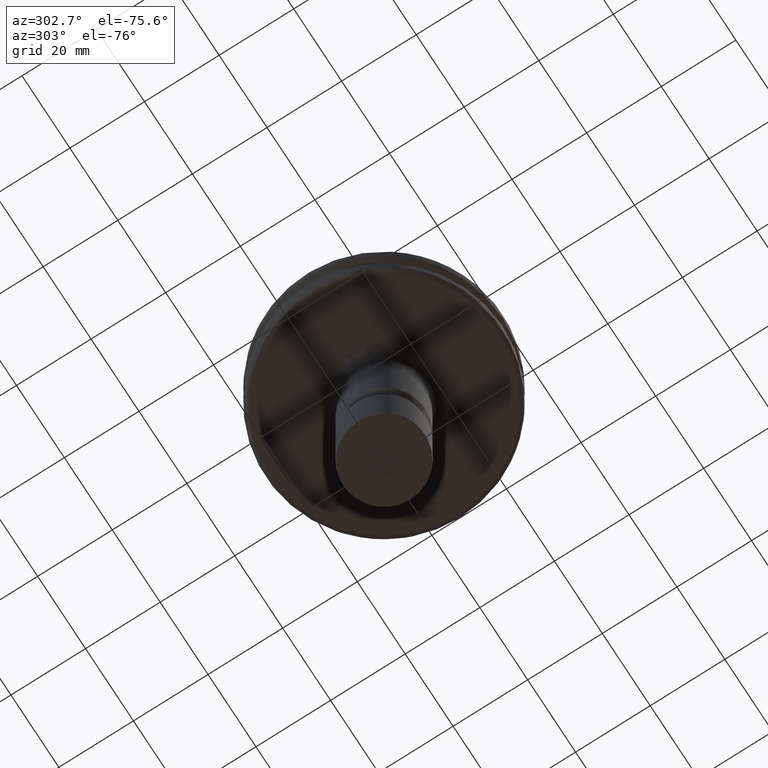
[diagram: clean part render]
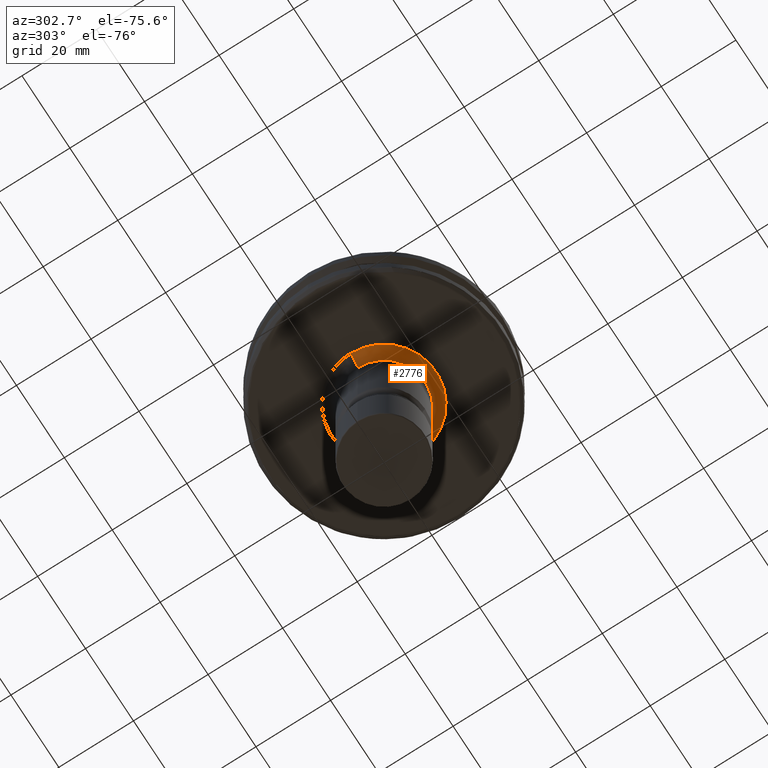
[diagram: same view with one face highlighted and labeled with its STEP entity id]
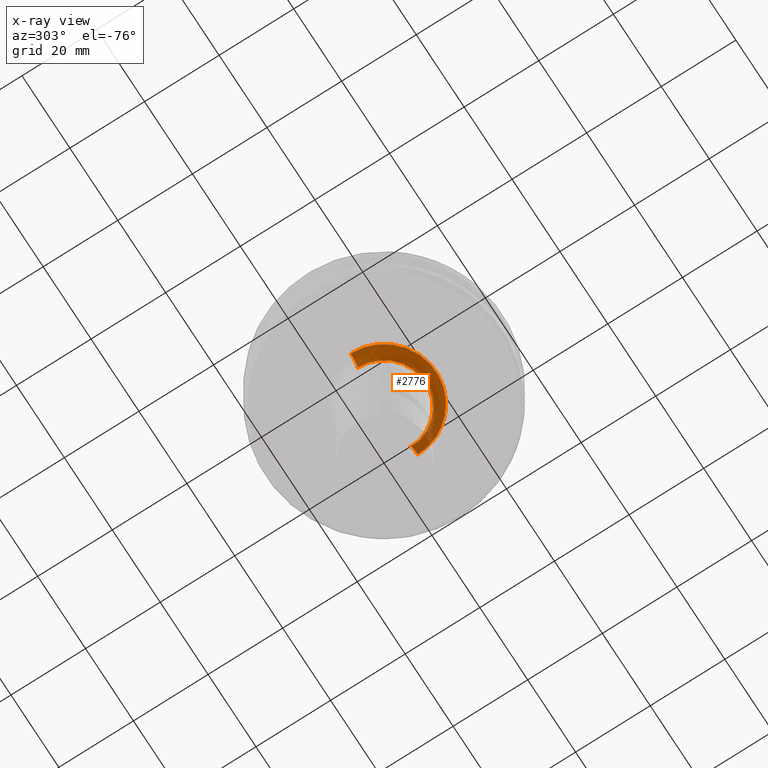
[diagram: x-ray of the same camera — body ghosted, the highlighted face saturated]
A machine part, auxiliary view. The second image highlights one B-rep face of the part: STEP entity #2776.
The next image is the same camera in x-ray: the body ghosted, the highlighted face saturated — about 12% of this face is hidden behind the body in this view.
In plain terms, the highlighted face is a freeform B-spline surface patch.
Its self-contained STEP definition (entity closure, byte-faithful):
#8 = CARTESIAN_POINT ( 'NONE',  ( 9.670185699738393500, -10.12905203563918700, -19.09999999999999800 ) ) ;
#27 = CARTESIAN_POINT ( 'NONE',  ( 2.030165421139752600, -13.85504947039885300, -19.10000000000000900 ) ) ;
#57 = CARTESIAN_POINT ( 'NONE',  ( -6.825787670833677500, -12.22346911042932200, -19.09999999999999800 ) ) ;
#60 = CARTESIAN_POINT ( 'NONE',  ( 12.99569472290052000, -5.233503724584436700, -19.09999999999999800 ) ) ;
#69 = CARTESIAN_POINT ( 'NONE',  ( -3.586314924045678400, -13.53362853226985300, -19.10000000000000100 ) ) ;
#83 = CARTESIAN_POINT ( 'NONE',  ( -12.38960221635758600, -6.534185748997289900, -19.09999999999999800 ) ) ;
#96 = CARTESIAN_POINT ( 'NONE',  ( -13.44615304805582700, -3.898854884805516500, -19.10000000000000100 ) ) ;
#105 = CARTESIAN_POINT ( 'NONE',  ( 8.857159757292198100, -10.84346154779650500, -19.09999999999999800 ) ) ;
#107 = CARTESIAN_POINT ( 'NONE',  ( 11.01498750400000000, -22.02997500800000500, -22.39950024999999900 ) ) ;
#133 = CARTESIAN_POINT ( 'NONE',  ( 4.604306026414626300, -13.22256113552754700, -19.09999999999999800 ) ) ;
#143 = CARTESIAN_POINT ( 'NONE',  ( -6.707400549822712500, -12.28882747609662300, -19.10000000000000900 ) ) ;
#153 = CARTESIAN_POINT ( 'NONE',  ( -6.342564730461603500, -12.48397714306705300, -19.10000000000000500 ) ) ;
#197 = CARTESIAN_POINT ( 'NONE',  ( -13.82938912185350200, -2.207324433498945900, -19.10000000000000100 ) ) ;
#205 = CARTESIAN_POINT ( 'NONE',  ( -11.01498750400000000, -22.02997500800000500, -22.39950024999999900 ) ) ;
#206 = CARTESIAN_POINT ( 'NONE',  ( -13.90998340567376300, -1.588377989081420000, -19.10000000000000100 ) ) ;
#209 = CARTESIAN_POINT ( 'NONE',  ( 3.722201693382291700, -13.49913474462273500, -19.10000000000000500 ) ) ;
#220 = CARTESIAN_POINT ( 'NONE',  ( 10.81033873200000200, -21.62067746400000700, -20.35983870400000500 ) ) ;
#221 = CARTESIAN_POINT ( 'NONE',  ( 13.87481563281596700, -1.868040598296404600, -19.10000000000000500 ) ) ;
#227 = ORIENTED_EDGE ( 'NONE', *, *, #3359, .T. ) ;
#236 = CARTESIAN_POINT ( 'NONE',  ( 13.85492846194623700, -2.011050052642201300, -19.10000000000000100 ) ) ;
#272 = CARTESIAN_POINT ( 'NONE',  ( 13.43691934145425100, -3.930560815935495900, -19.10000000000001200 ) ) ;
#274 = CARTESIAN_POINT ( 'NONE',  ( 12.54140199261577700, -6.222103028750720600, -19.10000000000000500 ) ) ;
#289 = EDGE_CURVE ( 'NONE', #3063, #930, #443, .T. ) ;
#323 = ORIENTED_EDGE ( 'NONE', *, *, #289, .F. ) ;
#336 = CIRCLE ( 'NONE', #2621, 11.00000000000000000 ) ;
#341 = CARTESIAN_POINT ( 'NONE',  ( -1.164762836666204200, -13.96366059549640700, -19.10000000000000500 ) ) ;
#359 = CARTESIAN_POINT ( 'NONE',  ( -12.24264068676927600, 0.0000000000000000000, -19.10000000091065100 ) ) ;
#378 = CARTESIAN_POINT ( 'NONE',  ( 13.78289792497374400, -2.467124180636911700, -19.09999999999999800 ) ) ;
#402 = CARTESIAN_POINT ( 'NONE',  ( 2.953587426001917000, -13.68624150545927500, -19.09999999999999800 ) ) ;
#405 = CARTESIAN_POINT ( 'NONE',  ( 10.13205364928209200, -9.661692692664953300, -19.10000000000000500 ) ) ;
#431 = CARTESIAN_POINT ( 'NONE',  ( -13.89360941968722700, -1.723427841727858100, -19.10000000000000500 ) ) ;
#443 = B_SPLINE_CURVE_WITH_KNOTS ( 'NONE', 3,
 ( #3166, #2090, #2102, #3142, #206, #431, #1032, #3382, #2827, #1009, #197, #3192, #2377, #1898, #3227, #603, #2462, #96, #573, #3316, #2834, #1540, #3143, #1403, #1584, #2095, #1043, #594, #83, #2033, #2765, #3281, #1013, #1042, #1245, #1172, #1553, #1552, #3493, #1122, #2592, #1297, #2011, #1536, #2922, #1635, #2486, #1287, #781, #1619, #2435, #3353, #1397, #1085, #2180, #2754, #2713, #3295, #988, #3440, #57, #143, #1116, #153, #2939, #570, #1109, #2670, #3331, #2572, #1625, #1493, #1467, #69, #870, #820, #1076, #544, #341, #1140, #1311, #2101, #2667, #2784, #3090, #27, #1819, #402, #1745, #614, #2392, #209, #2646, #133, #1910, #2893, #2933, #2126, #1841, #1611, #1477, #2747, #2237, #1205, #2644, #1384, #3050, #3329, #2348, #2389, #1267, #1971, #105, #1443, #990, #1863, #2580, #2616, #8, #2708, #405, #2408, #1471, #2145, #1161, #3461, #676, #2259, #1278, #661, #1082, #2508, #2092, #2030, #2335, #1872, #274, #2604, #3073, #1808, #3464, #60, #905, #1646, #1352, #3291, #1107, #2601, #272, #1830, #599, #378, #2457, #236, #1244, #3380, #482, #221, #3407, #995, #2141 ),
 .UNSPECIFIED., .F., .F.,
 ( 4, 1, 1, 1, 1, 1, 2, 2, 1, 1, 1, 1, 1, 2, 2, 1, 1, 1, 1, 1, 2, 2, 1, 1, 1, 1, 2, 2, 1, 1, 1, 2, 2, 1, 1, 1, 2, 2, 1, 1, 1, 2, 2, 1, 1, 2, 2, 1, 1, 2, 2, 1, 2, 2, 2, 2, 2, 1, 2, 2, 1, 1, 2, 2, 1, 1, 2, 2, 1, 1, 2, 2, 1, 1, 1, 2, 2, 1, 1, 1, 2, 2, 1, 1, 1, 2, 2, 1, 1, 1, 2, 2, 1, 1, 1, 1, 1, 2, 2, 1, 1, 1, 1, 1, 2, 2, 1, 1, 1, 1, 1, 2, 2, 4 ),
 ( 0.0000000000000000000, 0.03124999999999803600, 0.04687499999999704400, 0.05468749999999654400, 0.05859374999999628800, 0.06054687499999617700, 0.06152343749999612800, 0.06249999999999608600, 0.09374999999999446300, 0.1093749999999936600, 0.1171874999999932100, 0.1210937499999930300, 0.1230468749999929100, 0.1240234374999928300, 0.1249999999999927600, 0.1562499999999906500, 0.1718749999999896200, 0.1796874999999890900, 0.1835937499999887900, 0.1855468749999886200, 0.1865234374999885600, 0.1874999999999884800, 0.2187499999999882000, 0.2343749999999880100, 0.2421874999999879500, 0.2460937499999878700, 0.2480468749999879000, 0.2499999999999879500, 0.2656249999999890600, 0.2734374999999896200, 0.2773437499999899000, 0.2792968749999900600, 0.2812499999999902300, 0.2968749999999913400, 0.3046874999999918400, 0.3085937499999920600, 0.3105468749999920600, 0.3124999999999921200, 0.3281249999999923900, 0.3359374999999925100, 0.3398437499999925600, 0.3417968749999925600, 0.3437499999999925600, 0.3593749999999923900, 0.3671874999999922800, 0.3710937499999922800, 0.3749999999999922300, 0.3906249999999922800, 0.3984374999999922800, 0.4023437499999922800, 0.4062499999999922300, 0.4218749999999922300, 0.4296874999999922300, 0.4374999999999921700, 0.4531249999999921200, 0.4687499999999920600, 0.4999999999999920100, 0.5156249999999920100, 0.5234374999999920100, 0.5312499999999919000, 0.5468749999999917800, 0.5546874999999917800, 0.5585937499999917800, 0.5624999999999917800, 0.5781249999999917800, 0.5859374999999917800, 0.5898437499999917800, 0.5937499999999917800, 0.6093749999999919000, 0.6171874999999920100, 0.6210937499999919000, 0.6249999999999919000, 0.6406249999999919000, 0.6484374999999920100, 0.6523437499999920100, 0.6542968749999920100, 0.6562499999999920100, 0.6718749999999921200, 0.6796874999999921200, 0.6835937499999922300, 0.6855468749999923400, 0.6874999999999924500, 0.7031249999999924500, 0.7109374999999924500, 0.7148437499999923400, 0.7167968749999924500, 0.7187499999999925600, 0.7343749999999928900, 0.7421874999999932300, 0.7460937499999934500, 0.7480468749999935600, 0.7499999999999935600, 0.7812499999999956700, 0.7968749999999965600, 0.8046874999999970000, 0.8085937499999971100, 0.8105468749999973400, 0.8115234374999974500, 0.8124999999999974500, 0.8437499999999983300, 0.8593749999999987800, 0.8671874999999988900, 0.8710937499999990000, 0.8730468749999991100, 0.8740234374999991100, 0.8749999999999992200, 0.9062499999999993300, 0.9218749999999994400, 0.9296874999999995600, 0.9335937499999996700, 0.9355468749999995600, 0.9365234374999996700, 0.9374999999999996700, 1.000000000000000000 ),
 .UNSPECIFIED. ) ;
#479 = CARTESIAN_POINT ( 'NONE',  ( -11.01498750400000000, 0.0000000000000000000, -22.39950024999999900 ) ) ;
#482 = CARTESIAN_POINT ( 'NONE',  ( 13.87316931708519800, -1.880232539237060000, -19.10000000000000100 ) ) ;
#488 = CARTESIAN_POINT ( 'NONE',  ( -14.29950025000000100, -28.59900049999999500, -19.11498750400000500 ) ) ;
#544 = CARTESIAN_POINT ( 'NONE',  ( -2.032404573620525800, -13.85474557572991800, -19.10000000000000500 ) ) ;
#570 = CARTESIAN_POINT ( 'NONE',  ( -5.523321351448320400, -12.86573239425141900, -19.10000000000000100 ) ) ;
#573 = CARTESIAN_POINT ( 'NONE',  ( -13.44347325977919100, -3.908090055383259800, -19.10000000000000500 ) ) ;
#594 = CARTESIAN_POINT ( 'NONE',  ( -12.59035301931482600, -6.122351638554295800, -19.10000000000000500 ) ) ;
#599 = CARTESIAN_POINT ( 'NONE',  ( 13.66703007546562500, -3.070895171057114800, -19.09999999999999400 ) ) ;
#603 = CARTESIAN_POINT ( 'NONE',  ( -13.46140253849050500, -3.845964829889311000, -19.10000000000000100 ) ) ;
#614 = CARTESIAN_POINT ( 'NONE',  ( 3.305715666981399200, -13.60431573757647800, -19.10000000000000100 ) ) ;
#661 = CARTESIAN_POINT ( 'NONE',  ( 11.16400248908471800, -8.447833707622104200, -19.10000000000000900 ) ) ;
#663 = CARTESIAN_POINT ( 'NONE',  ( -10.81033873200000000, 0.0000000000000000000, -20.35983870400000500 ) ) ;
#676 = CARTESIAN_POINT ( 'NONE',  ( 10.94445488327781600, -8.731782042551010600, -19.10000000000000900 ) ) ;
#781 = CARTESIAN_POINT ( 'NONE',  ( -9.252630499693856000, -10.50665307429635900, -19.10000000000001200 ) ) ;
#820 = CARTESIAN_POINT ( 'NONE',  ( -2.883757012376557700, -13.70285579274853500, -19.10000000000000900 ) ) ;
#822 = CARTESIAN_POINT ( 'NONE',  ( 10.99999999996942700, -4.938649563580315600E-010, -22.10000000000000100 ) ) ;
#870 = CARTESIAN_POINT ( 'NONE',  ( -3.165831689325285100, -13.64043523922912700, -19.10000000000000900 ) ) ;
#905 = CARTESIAN_POINT ( 'NONE',  ( 13.23156504931381900, -4.582131538693362300, -19.10000000000000100 ) ) ;
#930 = VERTEX_POINT ( 'NONE', #3204 ) ;
#940 =( BOUNDED_CURVE ( )  B_SPLINE_CURVE ( 3, ( #822, #3205, #1120, #2164 ),
 .UNSPECIFIED., .F., .F. ) 
 B_SPLINE_CURVE_WITH_KNOTS ( ( 4, 4 ),
 ( 0.06314145671542857600, 0.9368585429999990400 ),
 .UNSPECIFIED. ) 
 CURVE ( )  GEOMETRIC_REPRESENTATION_ITEM ( )  RATIONAL_B_SPLINE_CURVE ( ( 0.9565783023485002800, 0.7697947703959744400, 0.7697947703351385500, 0.9565783021659924900 ) ) 
 REPRESENTATION_ITEM ( '' )  );
#951 = ORIENTED_EDGE ( 'NONE', *, *, #1843, .T. ) ;
#988 = CARTESIAN_POINT ( 'NONE',  ( -7.409682543835443400, -11.88381572842554900, -19.10000000000000100 ) ) ;
#990 = CARTESIAN_POINT ( 'NONE',  ( 9.106717894118128600, -10.63337622371102100, -19.10000000000000100 ) ) ;
#995 = CARTESIAN_POINT ( 'NONE',  ( 13.99999999858502500, -0.6223928478897156100, -19.10000000000000100 ) ) ;
#1009 = CARTESIAN_POINT ( 'NONE',  ( -13.87756610177013700, -1.847503412153400200, -19.10000000000000500 ) ) ;
#1013 = CARTESIAN_POINT ( 'NONE',  ( -11.31572006806703900, -8.243783611839973000, -19.10000000000000100 ) ) ;
#1020 = ORIENTED_EDGE ( 'NONE', *, *, #1727, .T. ) ;
#1032 = CARTESIAN_POINT ( 'NONE',  ( -13.88499896153912900, -1.790926287460798700, -19.09999999999999800 ) ) ;
#1042 = CARTESIAN_POINT ( 'NONE',  ( -11.26633694897633800, -8.310861380018137000, -19.10000000000000500 ) ) ;
#1043 = CARTESIAN_POINT ( 'NONE',  ( -12.59513548492049000, -6.112503177034723100, -19.10000000000000100 ) ) ;
#1076 = CARTESIAN_POINT ( 'NONE',  ( -2.316102617542180800, -13.81012906421380900, -19.10000000000001600 ) ) ;
#1082 = CARTESIAN_POINT ( 'NONE',  ( 11.18333890234614400, -8.422213075604137300, -19.09999999999999800 ) ) ;
#1085 = CARTESIAN_POINT ( 'NONE',  ( -8.158444783580272000, -11.37748629482766700, -19.09999999999999800 ) ) ;
#1107 = CARTESIAN_POINT ( 'NONE',  ( 13.42601507327002300, -3.967649351652723600, -19.10000000000000900 ) ) ;
#1109 = CARTESIAN_POINT ( 'NONE',  ( -5.330432813008728800, -12.94570773050853100, -19.10000000000000100 ) ) ;
#1116 = CARTESIAN_POINT ( 'NONE',  ( -6.649652934199322900, -12.32018218333323000, -19.10000000000000900 ) ) ;
#1120 = CARTESIAN_POINT ( 'NONE',  ( 12.24264068605801500, 0.0000000000000000000, -19.10000000091065400 ) ) ;
#1122 = CARTESIAN_POINT ( 'NONE',  ( -10.42313970972873500, -9.346890626123377300, -19.10000000000000500 ) ) ;
#1140 = CARTESIAN_POINT ( 'NONE',  ( -0.5829673818618201800, -13.99997709636030100, -19.10000000000000100 ) ) ;
#1161 = CARTESIAN_POINT ( 'NONE',  ( 10.44427892204517300, -9.326010361592295800, -19.10000000000000500 ) ) ;
#1172 = CARTESIAN_POINT ( 'NONE',  ( -11.21793503437584300, -8.376084768015770600, -19.10000000000000100 ) ) ;
#1205 = CARTESIAN_POINT ( 'NONE',  ( 6.826794371954015600, -12.22572099628869100, -19.10000000000000900 ) ) ;
#1244 = CARTESIAN_POINT ( 'NONE',  ( 13.86569435559510000, -1.934767207544784800, -19.10000000000000100 ) ) ;
#1245 = CARTESIAN_POINT ( 'NONE',  ( -11.23327407206233300, -8.355494633546836500, -19.10000000000000500 ) ) ;
#1267 = CARTESIAN_POINT ( 'NONE',  ( 8.186012949338584500, -11.36034870852447100, -19.10000000000001200 ) ) ;
#1278 = CARTESIAN_POINT ( 'NONE',  ( 11.12778686417240900, -8.495480441625561600, -19.10000000000000500 ) ) ;
#1284 = CARTESIAN_POINT ( 'NONE',  ( -12.25983870400000000, 0.0000000000000000000, -18.91033873200000300 ) ) ;
#1287 = CARTESIAN_POINT ( 'NONE',  ( -9.299559220018483800, -10.46513798148021800, -19.10000000000000100 ) ) ;
#1296 = CARTESIAN_POINT ( 'NONE',  ( 14.29950025000000100, -28.59900049999999500, -19.11498750400000500 ) ) ;
#1297 = CARTESIAN_POINT ( 'NONE',  ( -10.32252545782072100, -9.457606251297034900, -19.10000000000000500 ) ) ;
#1311 = CARTESIAN_POINT ( 'NONE',  ( 0.2914836909309104200, -14.00001144979583500, -19.10000000000000900 ) ) ;
#1352 = CARTESIAN_POINT ( 'NONE',  ( 13.39046332791143500, -4.086541573750611000, -19.10000000000000500 ) ) ;
#1361 = DIRECTION ( 'NONE',  ( 0.0000000000000000000, 0.0000000000000000000, 1.000000000000000000 ) ) ;
#1384 = CARTESIAN_POINT ( 'NONE',  ( 7.578582238966011400, -11.77273462968618600, -19.09999999999999800 ) ) ;
#1397 = CARTESIAN_POINT ( 'NONE',  ( -8.343369716037514600, -11.24358200145268000, -19.10000000000000100 ) ) ;
#1403 = CARTESIAN_POINT ( 'NONE',  ( -12.65957730396312900, -5.978246856526021200, -19.09999999999999800 ) ) ;
#1443 = CARTESIAN_POINT ( 'NONE',  ( 9.032284783957489800, -10.69697327577876700, -19.10000000000000900 ) ) ;
#1467 = CARTESIAN_POINT ( 'NONE',  ( -3.721859747613502900, -13.49696406483629100, -19.10000000000000500 ) ) ;
#1471 = CARTESIAN_POINT ( 'NONE',  ( 10.23935132379819800, -9.547597455740719500, -19.10000000000000500 ) ) ;
#1477 = CARTESIAN_POINT ( 'NONE',  ( 6.341189093826571400, -12.48175428091341600, -19.10000000000000100 ) ) ;
#1493 = CARTESIAN_POINT ( 'NONE',  ( -3.995516281995860700, -13.41851350840055600, -19.10000000000000500 ) ) ;
#1536 = CARTESIAN_POINT ( 'NONE',  ( -10.11203859036272800, -9.685536726585683100, -19.10000000000001200 ) ) ;
#1540 = CARTESIAN_POINT ( 'NONE',  ( -12.87517172004442800, -5.504562226840735500, -19.10000000000000900 ) ) ;
#1551 = CARTESIAN_POINT ( 'NONE',  ( -12.25983870399999800, -24.51967740900000300, -18.91033873200000300 ) ) ;
#1552 = CARTESIAN_POINT ( 'NONE',  ( -10.83415540340948300, -8.872518153654610300, -19.10000000000000100 ) ) ;
#1553 = CARTESIAN_POINT ( 'NONE',  ( -11.05651971480546400, -8.591321848587364600, -19.10000000000000100 ) ) ;
#1584 = CARTESIAN_POINT ( 'NONE',  ( -12.62213866011586200, -6.056621050367250600, -19.09999999999999400 ) ) ;
#1611 = CARTESIAN_POINT ( 'NONE',  ( 6.154794166880625600, -12.57587641362945300, -19.10000000000000100 ) ) ;
#1619 = CARTESIAN_POINT ( 'NONE',  ( -9.230049810286919500, -10.52650035554742300, -19.10000000000000900 ) ) ;
#1625 = CARTESIAN_POINT ( 'NONE',  ( -4.403951716143797800, -13.29465382039787100, -19.09999999999999400 ) ) ;
#1635 = CARTESIAN_POINT ( 'NONE',  ( -9.531905429778454700, -10.25525857001945500, -19.10000000000000100 ) ) ;
#1646 = CARTESIAN_POINT ( 'NONE',  ( 13.33921194611340500, -4.252410688305282300, -19.10000000000000100 ) ) ;
#1724 = CARTESIAN_POINT ( 'NONE',  ( -14.29950025000000100, 0.0000000000000000000, -19.11498750400000500 ) ) ;
#1727 = EDGE_CURVE ( 'NONE', #2315, #930, #940, .T. ) ;
#1745 = CARTESIAN_POINT ( 'NONE',  ( 3.164982404180360500, -13.63774737687257900, -19.10000000000000500 ) ) ;
#1808 = CARTESIAN_POINT ( 'NONE',  ( 12.57883289791504900, -6.145982777992530000, -19.10000000000000500 ) ) ;
#1810 = CARTESIAN_POINT ( 'NONE',  ( 14.29950025000000100, 0.0000000000000000000, -19.11498750400000500 ) ) ;
#1816 = CARTESIAN_POINT ( 'NONE',  ( 10.81033873200000000, 0.0000000000000000000, -20.35983870400000500 ) ) ;
#1819 = CARTESIAN_POINT ( 'NONE',  ( 2.458266889080651400, -13.78782115965945800, -19.09999999999999800 ) ) ;
#1830 = CARTESIAN_POINT ( 'NONE',  ( 13.53858102863775900, -3.582053877596091500, -19.10000000000000500 ) ) ;
#1841 = CARTESIAN_POINT ( 'NONE',  ( 5.715431561765311300, -12.78554393726402700, -19.09999999999999800 ) ) ;
#1843 = EDGE_CURVE ( 'NONE', #1995, #2315, #336, .T. ) ;
#1863 = CARTESIAN_POINT ( 'NONE',  ( 9.156202084737252300, -10.59079677476361100, -19.09999999999999800 ) ) ;
#1872 = CARTESIAN_POINT ( 'NONE',  ( 12.49804396901724600, -6.309072191030640700, -19.09999999999999800 ) ) ;
#1898 = CARTESIAN_POINT ( 'NONE',  ( -13.52348002842328300, -3.623423034698007400, -19.09999999999999800 ) ) ;
#1910 = CARTESIAN_POINT ( 'NONE',  ( 4.805097277074938900, -13.14975826910121800, -19.10000000000000500 ) ) ;
#1971 = CARTESIAN_POINT ( 'NONE',  ( 8.501118625466514100, -11.12881869393736700, -19.10000000000000100 ) ) ;
#1995 = VERTEX_POINT ( 'NONE', #3290 ) ;
#2011 = CARTESIAN_POINT ( 'NONE',  ( -10.30320828978966200, -9.478652170441609600, -19.09999999999999800 ) ) ;
#2030 = CARTESIAN_POINT ( 'NONE',  ( 12.22759838156411000, -6.824536630563670800, -19.09999999999999800 ) ) ;
#2033 = CARTESIAN_POINT ( 'NONE',  ( -12.07056792454100600, -7.116847533071544200, -19.09999999999999800 ) ) ;
#2052 = CARTESIAN_POINT ( 'NONE',  ( -14.00000000217724000, 0.0000000000000000000, -19.09999999992663100 ) ) ;
#2090 = CARTESIAN_POINT ( 'NONE',  ( -13.99999999858502300, -0.3110257572653066200, -19.10000000000000500 ) ) ;
#2092 = CARTESIAN_POINT ( 'NONE',  ( 11.83954440932815900, -7.494887792217078900, -19.10000000000000500 ) ) ;
#2095 = CARTESIAN_POINT ( 'NONE',  ( -12.60595519876803300, -6.090157345687402700, -19.10000000000000100 ) ) ;
#2101 = CARTESIAN_POINT ( 'NONE',  ( 0.7279952917918973700, -13.98640136111323400, -19.09999999999999400 ) ) ;
#2102 = CARTESIAN_POINT ( 'NONE',  ( -13.98451327292287200, -0.7765959601476483100, -19.10000000000001200 ) ) ;
#2126 = CARTESIAN_POINT ( 'NONE',  ( 5.331221713538242900, -12.94820046717454100, -19.10000000000000900 ) ) ;
#2141 = CARTESIAN_POINT ( 'NONE',  ( 14.00000000217723800, 0.0000000000000000000, -19.09999999992663100 ) ) ;
#2145 = CARTESIAN_POINT ( 'NONE',  ( 10.26167824832935300, -9.523592966065782800, -19.09999999999999800 ) ) ;
#2164 = CARTESIAN_POINT ( 'NONE',  ( 14.00000000217723800, 0.0000000000000000000, -19.09999999992663100 ) ) ;
#2180 = CARTESIAN_POINT ( 'NONE',  ( -8.078551725906972800, -11.43407227308017200, -19.09999999999999800 ) ) ;
#2227 =( BOUNDED_CURVE ( )  B_SPLINE_CURVE ( 3, ( #3076, #359, #3293, #2380 ),
 .UNSPECIFIED., .F., .T. ) 
 B_SPLINE_CURVE_WITH_KNOTS ( ( 4, 4 ),
 ( 0.06314145700000009500, 0.9368585429999997100 ),
 .UNSPECIFIED. ) 
 CURVE ( )  GEOMETRIC_REPRESENTATION_ITEM ( )  RATIONAL_B_SPLINE_CURVE ( ( 0.9565783021659930400, 0.7697947703959744400, 0.7697947703959744400, 0.9565783021659929300 ) ) 
 REPRESENTATION_ITEM ( '' )  );
#2237 = CARTESIAN_POINT ( 'NONE',  ( 6.528595523826218100, -12.38474622002781800, -19.10000000000000100 ) ) ;
#2259 = CARTESIAN_POINT ( 'NONE',  ( 11.07324531167494400, -8.566763568202510700, -19.10000000000000500 ) ) ;
#2304 = EDGE_LOOP ( 'NONE', ( #1020, #323, #227, #951 ) ) ;
#2315 = VERTEX_POINT ( 'NONE', #3243 ) ;
#2330 = DIRECTION ( 'NONE',  ( 1.000000000000000000, 0.0000000000000000000, 0.0000000000000000000 ) ) ;
#2335 = CARTESIAN_POINT ( 'NONE',  ( 12.40985685812561100, -6.482103296426697800, -19.10000000000000500 ) ) ;
#2348 = CARTESIAN_POINT ( 'NONE',  ( 7.915832860864129300, -11.54732367442854000, -19.10000000000000900 ) ) ;
#2363 = CARTESIAN_POINT ( 'NONE',  ( 11.01498750400000000, 0.0000000000000000000, -22.39950024999999900 ) ) ;
#2366 = FACE_OUTER_BOUND ( 'NONE', #2304, .T. ) ;
#2377 = CARTESIAN_POINT ( 'NONE',  ( -13.60127971256808100, -3.325682640459983700, -19.10000000000000900 ) ) ;
#2380 = CARTESIAN_POINT ( 'NONE',  ( -10.99999999996943100, -3.384206570502963900E-009, -22.09999999965454300 ) ) ;
#2389 = CARTESIAN_POINT ( 'NONE',  ( 7.944719910675399200, -11.52746530698369100, -19.10000000000000500 ) ) ;
#2392 = CARTESIAN_POINT ( 'NONE',  ( 3.377141883911362700, -13.58675477374800200, -19.10000000000000500 ) ) ;
#2408 = CARTESIAN_POINT ( 'NONE',  ( 10.19651887728577200, -9.593326984117425100, -19.10000000000000100 ) ) ;
#2435 = CARTESIAN_POINT ( 'NONE',  ( -9.008916577824292600, -10.71950399578601100, -19.10000000000000500 ) ) ;
#2457 = CARTESIAN_POINT ( 'NONE',  ( 13.83233450678003100, -2.163383893895633600, -19.09999999999999800 ) ) ;
#2462 = CARTESIAN_POINT ( 'NONE',  ( -13.45226805944122400, -3.877701979167554700, -19.10000000000000500 ) ) ;
#2486 = CARTESIAN_POINT ( 'NONE',  ( -9.369729972260589800, -10.40264237960631500, -19.10000000000000100 ) ) ;
#2508 = CARTESIAN_POINT ( 'NONE',  ( 11.46657754321799100, -8.044590776570466100, -19.10000000000000500 ) ) ;
#2572 = CARTESIAN_POINT ( 'NONE',  ( -4.806239048014970400, -13.15224257234795000, -19.10000000000000100 ) ) ;
#2580 = CARTESIAN_POINT ( 'NONE',  ( 9.181897645517608500, -10.56852412847597300, -19.10000000000000500 ) ) ;
#2592 = CARTESIAN_POINT ( 'NONE',  ( -10.36286045715019600, -9.413392332090424500, -19.10000000000000100 ) ) ;
#2601 = CARTESIAN_POINT ( 'NONE',  ( 13.43303050083620000, -3.943833681792457300, -19.10000000000000100 ) ) ;
#2604 = CARTESIAN_POINT ( 'NONE',  ( 12.55982638876216500, -6.184733328577493700, -19.10000000000000500 ) ) ;
#2616 = CARTESIAN_POINT ( 'NONE',  ( 9.394133895978741900, -10.38331381235762600, -19.10000000000000500 ) ) ;
#2621 = AXIS2_PLACEMENT_3D ( 'NONE', #3035, #1361, #2330 ) ;
#2644 = CARTESIAN_POINT ( 'NONE',  ( 7.178625550187303100, -12.02480031464069100, -19.09999999999999800 ) ) ;
#2646 = CARTESIAN_POINT ( 'NONE',  ( 4.132430612426022200, -13.38154095647169400, -19.09999999999999400 ) ) ;
#2667 = CARTESIAN_POINT ( 'NONE',  ( 1.163435989349808100, -13.95235037433007000, -19.10000000000000500 ) ) ;
#2670 = CARTESIAN_POINT ( 'NONE',  ( -5.201397601936335500, -12.99808607572695100, -19.10000000000000500 ) ) ;
#2708 = CARTESIAN_POINT ( 'NONE',  ( 9.980118876294730200, -9.819612591153219900, -19.10000000000000900 ) ) ;
#2713 = CARTESIAN_POINT ( 'NONE',  ( -7.999311379384114900, -11.48965298283111900, -19.10000000000000100 ) ) ;
#2747 = CARTESIAN_POINT ( 'NONE',  ( 6.465029415704044000, -12.41805849852786100, -19.10000000000000900 ) ) ;
#2754 = CARTESIAN_POINT ( 'NONE',  ( -8.025147572971079100, -11.47161813057048700, -19.10000000000000100 ) ) ;
#2765 = CARTESIAN_POINT ( 'NONE',  ( -11.65105328396713700, -7.767972728221109500, -19.09999999999999800 ) ) ;
#2776 = ADVANCED_FACE ( 'NONE', ( #2366 ), #3193, .F. ) ;
#2784 = CARTESIAN_POINT ( 'NONE',  ( 1.453491809209958700, -13.92510729467450400, -19.10000000000001200 ) ) ;
#2827 = CARTESIAN_POINT ( 'NONE',  ( -13.87867723172781500, -1.839128744650180500, -19.10000000000000500 ) ) ;
#2834 = CARTESIAN_POINT ( 'NONE',  ( -13.13853108281346000, -4.863810809559330700, -19.10000000000000900 ) ) ;
#2888 = CARTESIAN_POINT ( 'NONE',  ( 12.25983870400000000, 0.0000000000000000000, -18.91033873200000300 ) ) ;
#2893 = CARTESIAN_POINT ( 'NONE',  ( 4.938637873155030900, -13.10018554538359800, -19.10000000000000100 ) ) ;
#2922 = CARTESIAN_POINT ( 'NONE',  ( -9.850031153959207600, -9.954247996654597600, -19.09999999999999800 ) ) ;
#2933 = CARTESIAN_POINT ( 'NONE',  ( 5.006817212484128800, -13.07427063635123700, -19.10000000000000500 ) ) ;
#2939 = CARTESIAN_POINT ( 'NONE',  ( -5.968744660624365000, -12.66926854731183900, -19.10000000000000100 ) ) ;
#3035 = CARTESIAN_POINT ( 'NONE',  ( 0.0000000000000000000, 0.0000000000000000000, -22.10000000000000100 ) ) ;
#3050 = CARTESIAN_POINT ( 'NONE',  ( 7.775932328565342100, -11.64228723145097000, -19.09999999999999800 ) ) ;
#3063 = VERTEX_POINT ( 'NONE', #2052 ) ;
#3073 = CARTESIAN_POINT ( 'NONE',  ( 12.57207429420035500, -6.159798594672395200, -19.10000000000000900 ) ) ;
#3076 = CARTESIAN_POINT ( 'NONE',  ( -14.00000000217724000, 0.0000000000000000000, -19.09999999992663100 ) ) ;
#3090 = CARTESIAN_POINT ( 'NONE',  ( 1.599703281383743700, -13.90905113827869900, -19.10000000000000500 ) ) ;
#3142 = CARTESIAN_POINT ( 'NONE',  ( -13.93934365640826900, -1.318066439066382500, -19.10000000000000500 ) ) ;
#3143 = CARTESIAN_POINT ( 'NONE',  ( -12.73316352780018700, -5.821007116466709900, -19.09999999999999800 ) ) ;
#3153 = CARTESIAN_POINT ( 'NONE',  ( 12.25983870399999800, -24.51967740900000300, -18.91033873200000300 ) ) ;
#3166 = CARTESIAN_POINT ( 'NONE',  ( -14.00000000217724000, 0.0000000000000000000, -19.09999999992663100 ) ) ;
#3192 = CARTESIAN_POINT ( 'NONE',  ( -13.73983804394698500, -2.726711564042388700, -19.10000000000000500 ) ) ;
#3193 =( BOUNDED_SURFACE ( )  B_SPLINE_SURFACE ( 3, 3, ( 
 ( #1810, #1296, #488, #1724 ),
 ( #2888, #3153, #1551, #1284 ),
 ( #1816, #220, #3437, #663 ),
 ( #2363, #107, #205, #479 ) ),
 .UNSPECIFIED., .F., .F., .T. ) 
 B_SPLINE_SURFACE_WITH_KNOTS ( ( 4, 4 ),
 ( 4, 4 ),
 ( 0.0000000000000000000, 1.000000000000000000 ),
 ( 0.0000000000000000000, 1.000000000000000000 ),
 .UNSPECIFIED. ) 
 GEOMETRIC_REPRESENTATION_ITEM ( )  RATIONAL_B_SPLINE_SURFACE ( (
 ( 1.000000000000000000, 0.3333333333333330400, 0.3333333333333330400, 1.000000000000000000),
 ( 0.7553208711179720800, 0.2517736237059909900, 0.2517736237059909900, 0.7553208711179720800),
 ( 0.7553208711179720800, 0.2517736237059909900, 0.2517736237059909900, 0.7553208711179720800),
 ( 1.000000000000000000, 0.3333333333333330400, 0.3333333333333330400, 1.000000000000000000) ) ) 
 REPRESENTATION_ITEM ( '' )  SURFACE ( )  );
#3204 = CARTESIAN_POINT ( 'NONE',  ( 14.00000000217723800, 0.0000000000000000000, -19.09999999992663100 ) ) ;
#3205 = CARTESIAN_POINT ( 'NONE',  ( 11.00000000010118800, 0.0000000000000000000, -20.34264068757875100 ) ) ;
#3227 = CARTESIAN_POINT ( 'NONE',  ( -13.48245005673706300, -3.771856945824326100, -19.09999999999999800 ) ) ;
#3243 = CARTESIAN_POINT ( 'NONE',  ( 10.99999999996942700, -4.938649563580315600E-010, -22.10000000000000100 ) ) ;
#3281 = CARTESIAN_POINT ( 'NONE',  ( -11.42946897198322800, -8.086373604228276300, -19.09999999999999400 ) ) ;
#3290 = CARTESIAN_POINT ( 'NONE',  ( -10.99999999996943100, -3.384206570502963900E-009, -22.09999999965454300 ) ) ;
#3291 = CARTESIAN_POINT ( 'NONE',  ( 13.41544600216001500, -4.003354844133114400, -19.10000000000000500 ) ) ;
#3293 = CARTESIAN_POINT ( 'NONE',  ( -11.00000000091064800, 0.0000000000000000000, -20.34264068676927900 ) ) ;
#3295 = CARTESIAN_POINT ( 'NONE',  ( -7.749281199668874200, -11.66284730174506400, -19.10000000000000100 ) ) ;
#3316 = CARTESIAN_POINT ( 'NONE',  ( -13.32885564223925300, -4.301118215267646100, -19.10000000000000100 ) ) ;
#3329 = CARTESIAN_POINT ( 'NONE',  ( 7.859947740938611800, -11.58543522740202300, -19.10000000000000500 ) ) ;
#3331 = CARTESIAN_POINT ( 'NONE',  ( -5.138062878864950300, -13.02326011005788300, -19.10000000000000500 ) ) ;
#3353 = CARTESIAN_POINT ( 'NONE',  ( -8.707250772496749400, -10.96829203822601800, -19.10000000000000100 ) ) ;
#3359 = EDGE_CURVE ( 'NONE', #3063, #1995, #2227, .T. ) ;
#3380 = CARTESIAN_POINT ( 'NONE',  ( 13.87019450631585100, -1.902049718687882900, -19.10000000000000500 ) ) ;
#3382 = CARTESIAN_POINT ( 'NONE',  ( -13.88121802265676800, -1.819848518362723800, -19.10000000000000100 ) ) ;
#3407 = CARTESIAN_POINT ( 'NONE',  ( 13.95870206348595700, -1.241861874378699500, -19.10000000000000500 ) ) ;
#3437 = CARTESIAN_POINT ( 'NONE',  ( -10.81033873200000200, -21.62067746400000700, -20.35983870400000500 ) ) ;
#3440 = CARTESIAN_POINT ( 'NONE',  ( -7.002590216990145500, -12.12418689544444700, -19.09999999999999800 ) ) ;
#3461 = CARTESIAN_POINT ( 'NONE',  ( 10.68076680287143900, -9.056583707257118500, -19.09999999999999800 ) ) ;
#3464 = CARTESIAN_POINT ( 'NONE',  ( 12.75824610115062500, -5.777989286973813400, -19.10000000000000100 ) ) ;
#3493 = CARTESIAN_POINT ( 'NONE',  ( -10.56222857416876700, -9.190454188767018800, -19.09999999999999400 ) ) ;